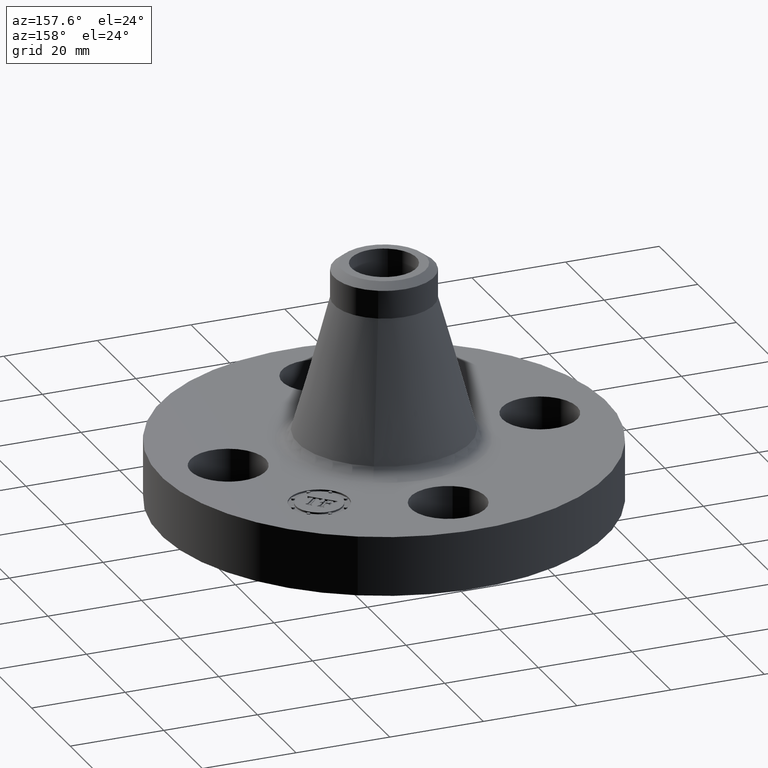
[diagram: clean part render]
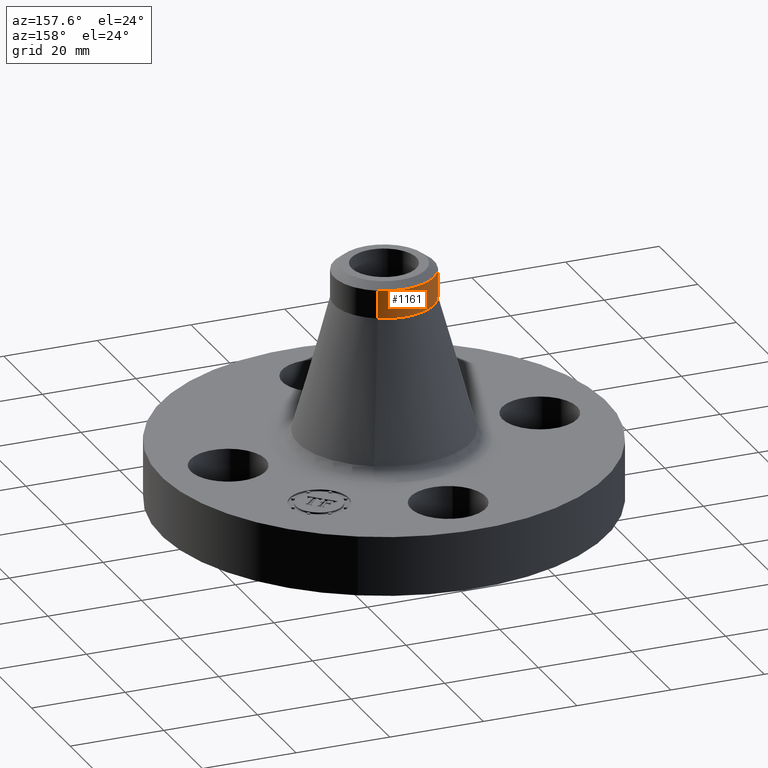
[diagram: same view with one face highlighted and labeled with its STEP entity id]
A machine part, auxiliary view. The second image highlights one B-rep face of the part: STEP entity #1161.
In plain terms, the highlighted cylindrical surface (partial cylindrical patch) has radius 10.668 mm, axis along (-0, 0, -1).
Its self-contained STEP definition (entity closure, byte-faithful):
#820=AXIS2_PLACEMENT_3D('Circle Axis2P3D',#818,#819,$) ;
#1124=AXIS2_PLACEMENT_3D('Cylinder Axis2P3D',#1121,#1122,#1123) ;
#1142=AXIS2_PLACEMENT_3D('Circle Axis2P3D',#1140,#1141,$) ;
#815=CARTESIAN_POINT('Vertex',(-0.201358726215,-0.368584675996,1.71140190821)) ;
#818=CARTESIAN_POINT('Axis2P3D Location',(0.,0.,1.71140190821)) ;
#822=CARTESIAN_POINT('Vertex',(0.201358726215,0.368584675996,1.71140190821)) ;
#1121=CARTESIAN_POINT('Axis2P3D Location',(0.,0.,0.968750000004)) ;
#1126=CARTESIAN_POINT('Line Origine',(0.201358726215,0.368584675996,1.82951214442)) ;
#1130=CARTESIAN_POINT('Vertex',(0.201358726215,0.368584675996,1.94762238063)) ;
#1133=CARTESIAN_POINT('Line Origine',(-0.201358726215,-0.368584675996,1.82951214442)) ;
#1137=CARTESIAN_POINT('Vertex',(-0.201358726215,-0.368584675996,1.94762238063)) ;
#1140=CARTESIAN_POINT('Axis2P3D Location',(0.,0.,1.94762238063)) ;
#1144=CARTESIAN_POINT('Vertex',(-0.201358726215,0.368584675995,1.94762238063)) ;
#1148=CARTESIAN_POINT('Control Point',(-0.201358726215,0.368584675995,1.94762238063)) ;
#1149=CARTESIAN_POINT('Control Point',(-0.109212557216,0.418924357549,1.94762238063)) ;
#1150=CARTESIAN_POINT('Control Point',(-2.20610931098E-013,0.438570443587,1.94762238064)) ;
#1151=CARTESIAN_POINT('Control Point',(0.109212557216,0.418924357549,1.94762238064)) ;
#1152=CARTESIAN_POINT('Control Point',(0.201358726215,0.368584675996,1.94762238065)) ;
#819=DIRECTION('Axis2P3D Direction',(-0.,0.,-0.0393700787402)) ;
#1122=DIRECTION('Axis2P3D Direction',(-0.,0.,-0.0393700787402)) ;
#1123=DIRECTION('Axis2P3D XDirection',(-0.0188750212049,-0.0345504945626,0.)) ;
#1127=DIRECTION('Vector Direction',(0.,0.,-0.0393700787402)) ;
#1134=DIRECTION('Vector Direction',(0.,0.,-0.0393700787402)) ;
#1141=DIRECTION('Axis2P3D Direction',(-0.,0.,-0.0393700787402)) ;
#1128=VECTOR('Line Direction',#1127,0.0393700787402) ;
#1135=VECTOR('Line Direction',#1134,0.0393700787402) ;
#1155=ORIENTED_EDGE('',*,*,#1132,.F.) ;
#1156=ORIENTED_EDGE('',*,*,#824,.F.) ;
#1157=ORIENTED_EDGE('',*,*,#1139,.T.) ;
#1158=ORIENTED_EDGE('',*,*,#1146,.F.) ;
#1159=ORIENTED_EDGE('',*,*,#1153,.T.) ;
#1161=ADVANCED_FACE('PartBody',(#1160),#1125,.T.) ;
#1147=B_SPLINE_CURVE_WITH_KNOTS('',4,(#1148,#1149,#1150,#1151,#1152),.UNSPECIFIED.,.F.,.U.,(5,5),(-5.33400000003,5.33400000003),.UNSPECIFIED.) ;
#821=CIRCLE('generated circle',#820,0.420000000002) ;
#1143=CIRCLE('generated circle',#1142,0.420000000002) ;
#1125=CYLINDRICAL_SURFACE('generated cylinder',#1124,0.420000000002) ;
#824=EDGE_CURVE('',#816,#823,#821,.T.) ;
#1132=EDGE_CURVE('',#823,#1131,#1129,.F.) ;
#1139=EDGE_CURVE('',#816,#1138,#1136,.F.) ;
#1146=EDGE_CURVE('',#1145,#1138,#1143,.F.) ;
#1153=EDGE_CURVE('',#1145,#1131,#1147,.T.) ;
#1154=EDGE_LOOP('',(#1155,#1156,#1157,#1158,#1159)) ;
#1160=FACE_OUTER_BOUND('',#1154,.T.) ;
#1129=LINE('Line',#1126,#1128) ;
#1136=LINE('Line',#1133,#1135) ;
#816=VERTEX_POINT('',#815) ;
#823=VERTEX_POINT('',#822) ;
#1131=VERTEX_POINT('',#1130) ;
#1138=VERTEX_POINT('',#1137) ;
#1145=VERTEX_POINT('',#1144) ;